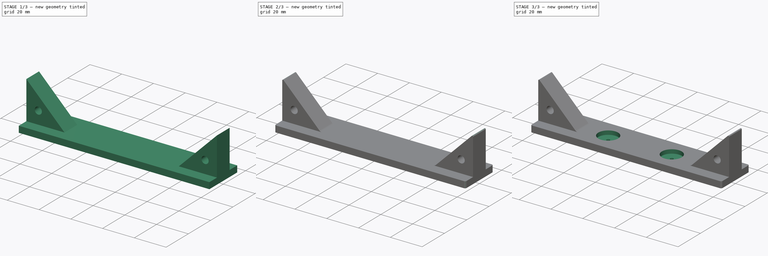
[diagram: build sequence overview — one tinted view per stage of 3, left to right]
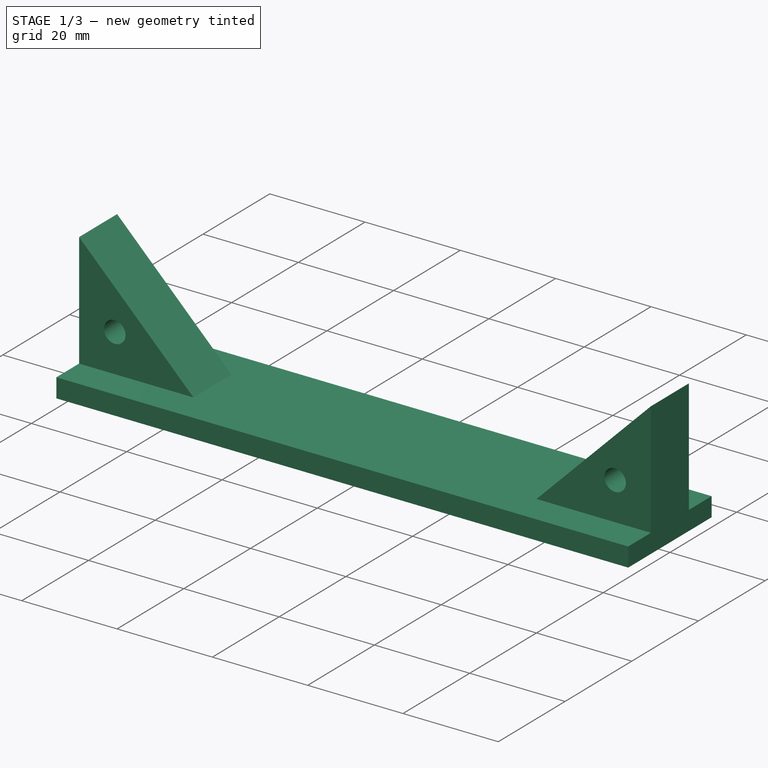
[diagram: stage 1 of 3 — iso view after this stage's code; geometry added in this stage tinted green]
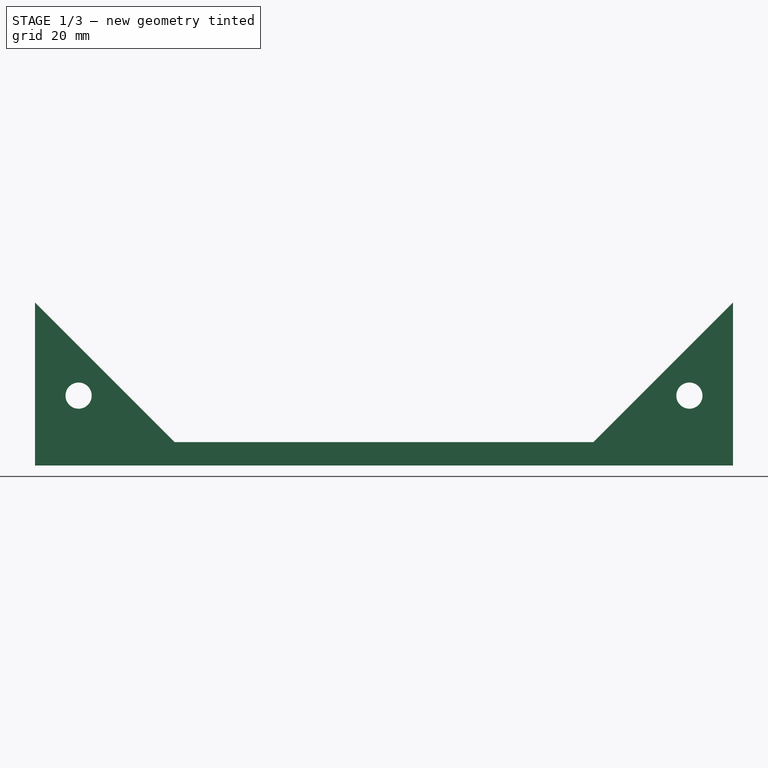
[diagram: stage 1 of 3 — front view after this stage's code; geometry added in this stage tinted green]
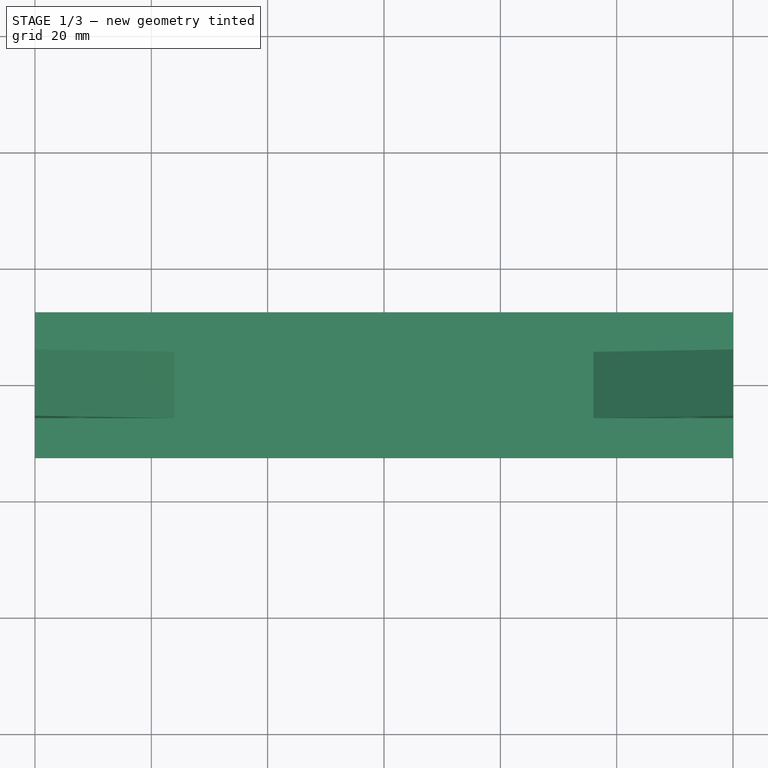
[diagram: stage 1 of 3 — top view after this stage's code; geometry added in this stage tinted green]
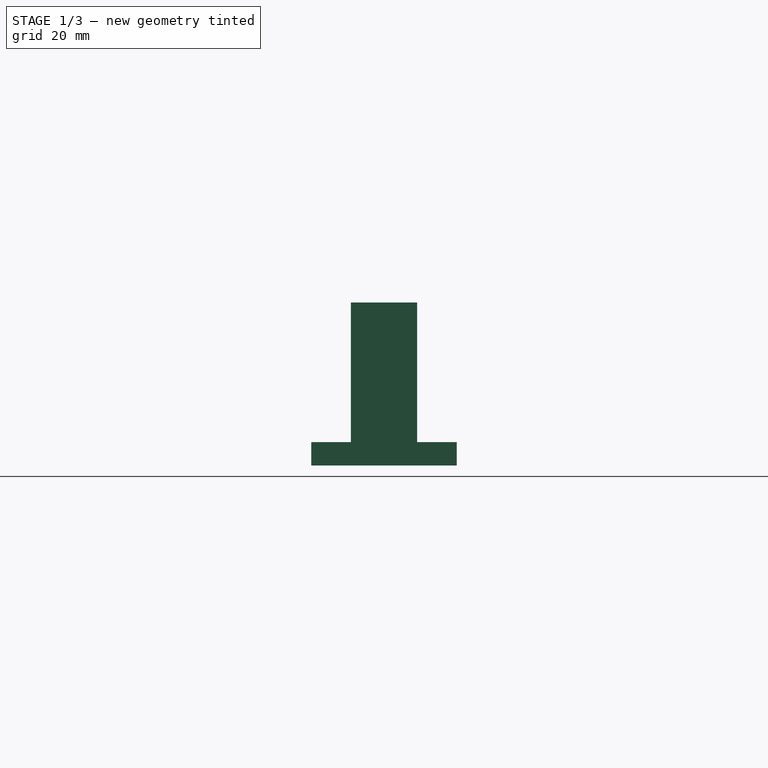
[diagram: stage 1 of 3 — right view after this stage's code; geometry added in this stage tinted green]
FCSTD DOCUMENT  (FreeCAD 0.19R24291 (Git))
Label: 120mmFanHolder
License: All rights reserved
LicenseURL: http://en.wikipedia.org/wiki/All_rights_reserved
objects: Sketcher::SketchObject×4, PartDesign::Fillet×3, PartDesign::Pad×2, PartDesign::Pocket×2, PartDesign::Body×1
note: 19 computed .brp shape members not serialized (recipe doc carries the construction recipe); baked Part::Feature solids carry a one-line shape summary decoded from their .brp

FEATURE [Sketcher::SketchObject] Sketch
  FullyConstrained = true
  MapMode = 5
  Support = -> [XY_Plane]
  expr: Constraints[10] = Constraints[8] / 2
  expr: Constraints[11] = Constraints[9] / 2
  sketch-geometry (4):
    g0: LineSegment StartX=-60 StartY=-12.5 StartZ=0 EndX=60 EndY=-12.5 EndZ=0
    g1: LineSegment StartX=60 StartY=-12.5 StartZ=0 EndX=60 EndY=12.5 EndZ=0
    g2: LineSegment StartX=60 StartY=12.5 StartZ=0 EndX=-60 EndY=12.5 EndZ=0
    g3: LineSegment StartX=-60 StartY=12.5 StartZ=0 EndX=-60 EndY=-12.5 EndZ=0
  constraints (12):
    c: Coincident(g0,g1)
    c: Coincident(g1,g2)
    c: Coincident(g2,g3)
    c: Coincident(g3,g0)
    c: Horizontal(g0)
    c: Horizontal(g2)
    c: Vertical(g1)
    c: Vertical(g3)
    c: Distance(g2) = 120
    c: Distance(g1) = 25
    c: Distance(g2,g-2) = 60
    c: Distance(g1,g-1) = 12.5
FEATURE [PartDesign::Pad] Pad
  Direction = (1,1,1)
  Length = 4
  Length2 = 100
  Profile = -> Sketch
  Type = 0
FEATURE [Sketcher::SketchObject] Sketch001
  ExternalGeometry = -> [Pad]
  FullyConstrained = true
  MapMode = 5
  Placement = pos=(0,0,0) rot=(1,0,0;1.5708rad)
  Support = -> [XZ_Plane]
  expr: Constraints[15] = Constraints[6]
  expr: Constraints[20] = Constraints[19]
  sketch-geometry (10):
    g0: LineSegment StartX=-60 StartY=4 StartZ=0 EndX=-60 EndY=28 EndZ=0
    g1: LineSegment StartX=-60 StartY=28 StartZ=0 EndX=-36 EndY=4 EndZ=0
    g2: LineSegment StartX=-36 StartY=4 StartZ=0 EndX=-60 EndY=4 EndZ=0
    g3: LineSegment StartX=60 StartY=4 StartZ=0 EndX=36 EndY=4 EndZ=0
    g4: LineSegment StartX=36 StartY=4 StartZ=0 EndX=60 EndY=28 EndZ=0
    g5: LineSegment StartX=60 StartY=28 StartZ=0 EndX=60 EndY=4 EndZ=0
    g6: Circle CenterX=-52.5 CenterY=12 CenterZ=0 NormalX=0 NormalY=0 NormalZ=1 AngleXU=0 Radius=2.25
    g7: Circle CenterX=52.5 CenterY=12 CenterZ=0 NormalX=0 NormalY=0 NormalZ=1 AngleXU=0 Radius=2.25
    g8: LineSegment StartX=-52.5 StartY=12 StartZ=0 EndX=-60 EndY=12 EndZ=0
    g9: LineSegment StartX=52.5 StartY=12 StartZ=0 EndX=60 EndY=12 EndZ=0
  constraints (28):
    c: Vertical(g0)
    c: Coincident(g1,g0)
    c: PointOnObject(g1,g-3)
    c: Coincident(g2,g1)
    c: Coincident(g2,g0)
    c: Angle(g0,g1) = 0.785398
    c: Distance(g0) = 24
    c: Coincident(g0,g-4)
    c: Coincident(g3,g-3)
    c: PointOnObject(g3,g-3)
    c: Coincident(g4,g3)
    c: Coincident(g5,g4)
    c: Coincident(g5,g3)
    c: Equal(g5,g3)
    c: Vertical(g5)
    c: Distance(g5) = 24
    c: Horizontal(g6,g7)
    c: Distance(g6,g7) = 105
    c: Distance(g6,g2) = 8
    c: Diameter(g6) = 4.5
    c: Diameter(g7) = 4.5
    c: Coincident(g8,g6)
    c: PointOnObject(g8,g0)
    c: Horizontal(g8)
    c: Coincident(g9,g7)
    c: Horizontal(g9)
    c: PointOnObject(g9,g5)
    c: Equal(g9,g8)
FEATURE [PartDesign::Pad] Pad001
  BaseFeature = -> Pad
  Direction = (1,1,1)
  Length = 11.4
  Length2 = 100
  Midplane = true
  Profile = -> Sketch001
  Type = 0
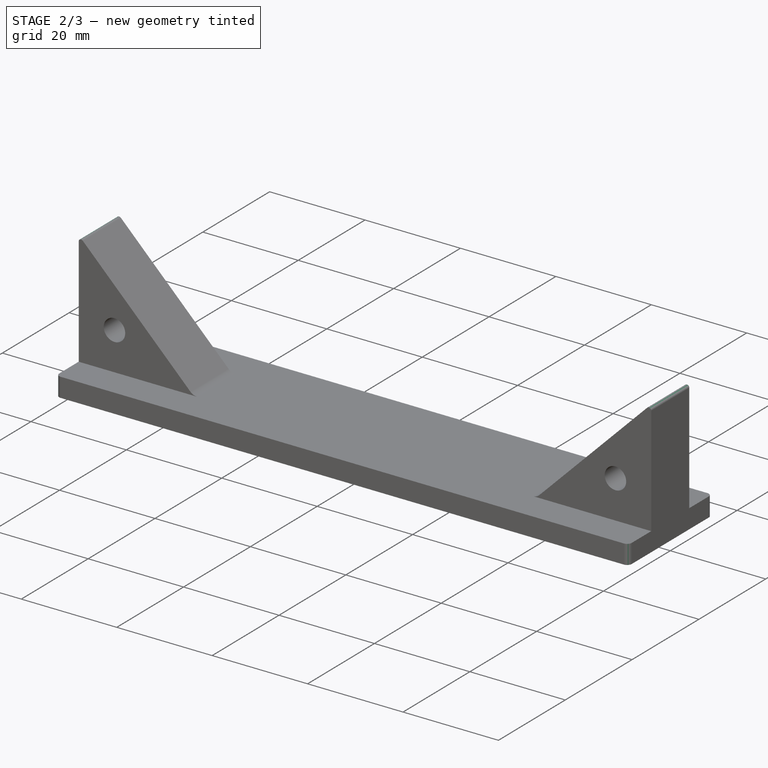
[diagram: stage 2 of 3 — iso view after this stage's code; geometry added in this stage tinted green]
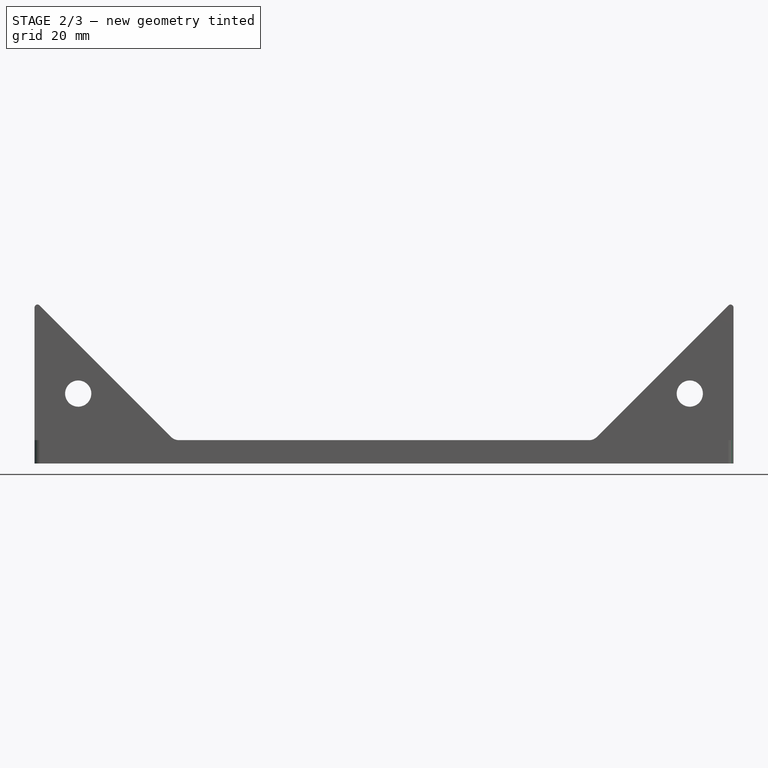
[diagram: stage 2 of 3 — front view after this stage's code; geometry added in this stage tinted green]
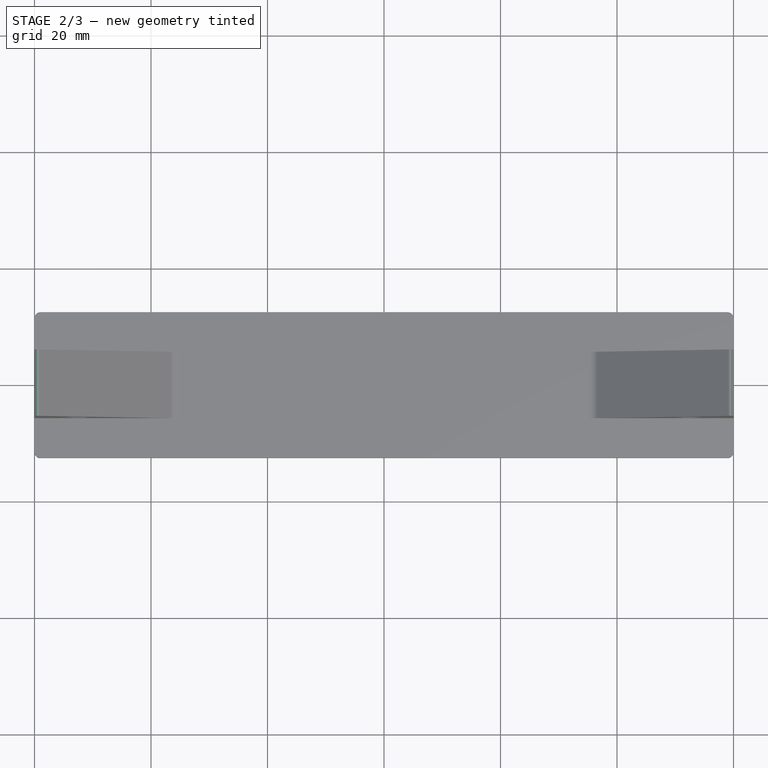
[diagram: stage 2 of 3 — top view after this stage's code; geometry added in this stage tinted green]
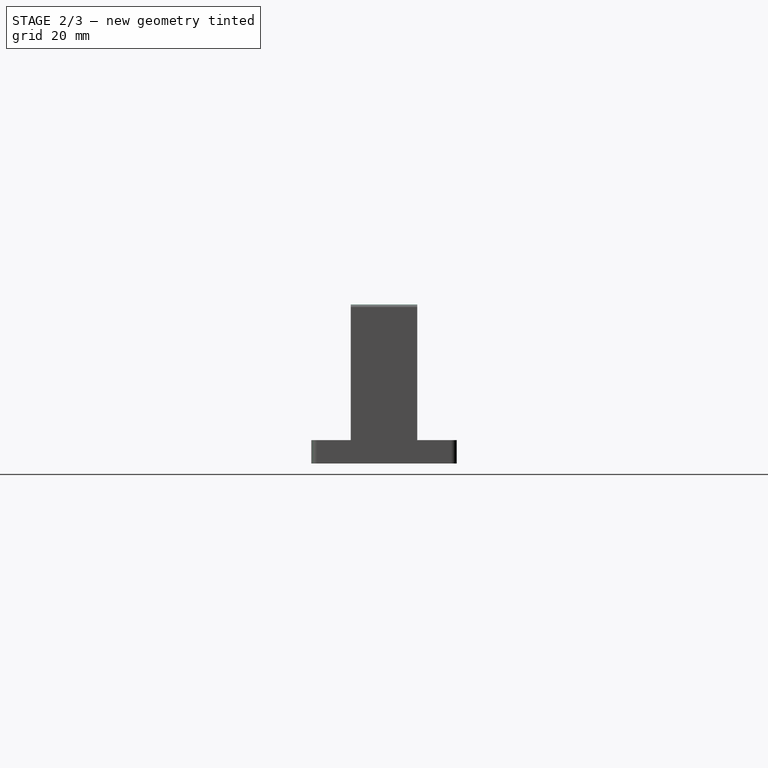
[diagram: stage 2 of 3 — right view after this stage's code; geometry added in this stage tinted green]
FEATURE [PartDesign::Fillet] Fillet
  Base = -> Pad001 [Edge17,Edge21]
  BaseFeature = -> Pad001
  Radius = 2
  SupportTransform = false
FEATURE [PartDesign::Fillet] Fillet001
  Base = -> Fillet [Edge45,Edge47]
  BaseFeature = -> Fillet
  Radius = 0.5
  SupportTransform = false
FEATURE [PartDesign::Fillet] Fillet002
  Base = -> Fillet001 [Edge32,Edge33,Edge37,Edge35]
  BaseFeature = -> Fillet001
  Radius = 1
  SupportTransform = false
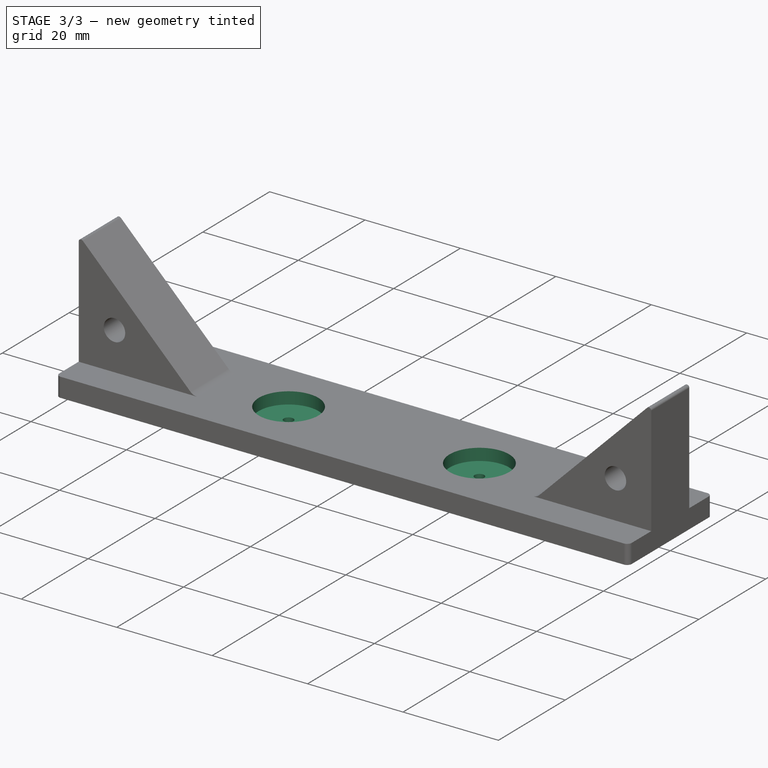
[diagram: stage 3 of 3 — iso view after this stage's code; geometry added in this stage tinted green]
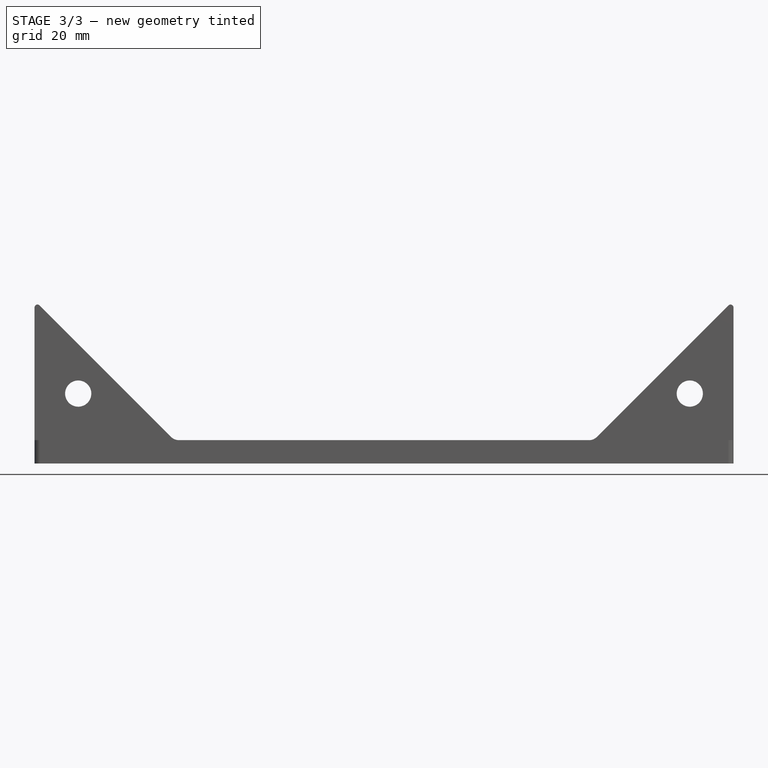
[diagram: stage 3 of 3 — front view after this stage's code; geometry added in this stage tinted green]
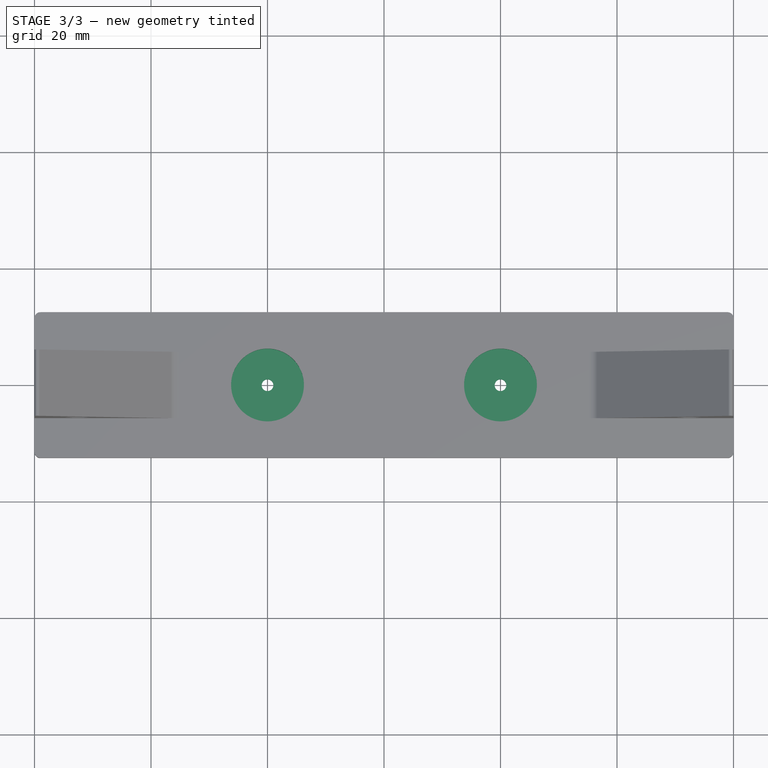
[diagram: stage 3 of 3 — top view after this stage's code; geometry added in this stage tinted green]
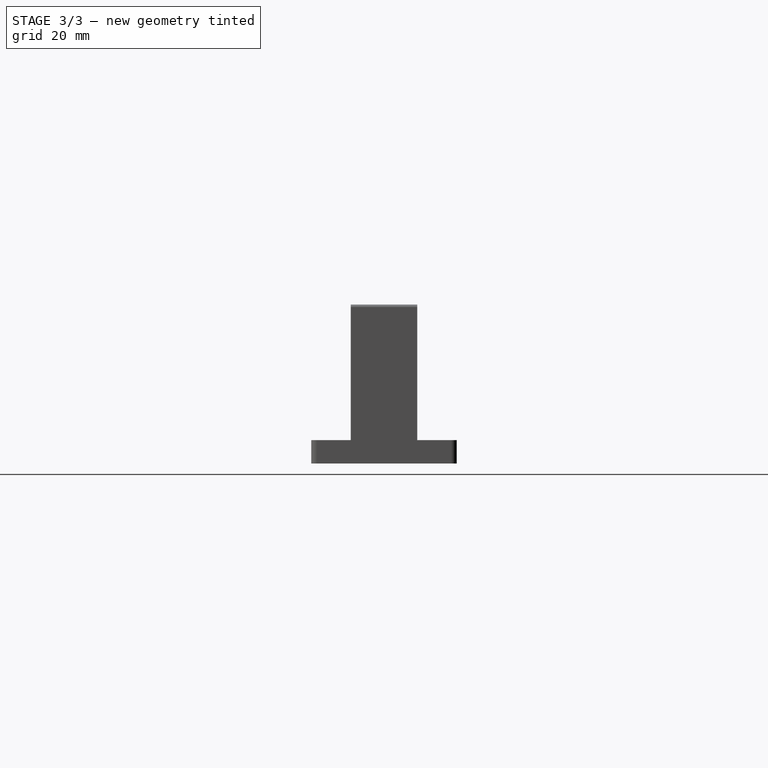
[diagram: stage 3 of 3 — right view after this stage's code; geometry added in this stage tinted green]
FEATURE [Sketcher::SketchObject] Sketch002
  FullyConstrained = true
  MapMode = 5
  Placement = pos=(0,0,4) rot=(0,0,1;0rad)
  Support = -> [Fillet002]
  expr: Constraints[3] = Constraints[2]
  sketch-geometry (4):
    g0: Circle CenterX=-20 CenterY=0 CenterZ=0 NormalX=0 NormalY=0 NormalZ=1 AngleXU=0 Radius=6.25
    g1: Circle CenterX=20 CenterY=0 CenterZ=0 NormalX=0 NormalY=0 NormalZ=1 AngleXU=0 Radius=6.25
    g2: LineSegment StartX=-20 StartY=0 StartZ=0 EndX=0 EndY=0 EndZ=0
    g3: LineSegment StartX=20 StartY=0 StartZ=0 EndX=0 EndY=0 EndZ=0
  constraints (10):
    c: PointOnObject(g0,g-1)
    c: PointOnObject(g1,g-1)
    c: Diameter(g0) = 12.5
    c: Diameter(g1) = 12.5
    c: Coincident(g2,g0)
    c: Coincident(g2,g-1)
    c: Coincident(g3,g1)
    c: Coincident(g3,g-1)
    c: Equal(g3,g2)
    c: Distance(g2) = 20
FEATURE [PartDesign::Pocket] Pocket
  BaseFeature = -> Fillet002
  Length = 2.5
  Length2 = 100
  Profile = -> Sketch002
  Type = 0
FEATURE [Sketcher::SketchObject] Sketch003
  ExternalGeometry = -> [Pocket]
  FullyConstrained = true
  MapMode = 5
  Placement = pos=(0,0,1.5) rot=(0,0,1;0rad)
  Support = -> [Pocket]
  expr: Constraints[3] = Constraints[2]
  sketch-geometry (2):
    g0: Circle CenterX=-20 CenterY=0 CenterZ=0 NormalX=0 NormalY=0 NormalZ=1 AngleXU=0 Radius=1
    g1: Circle CenterX=20 CenterY=0 CenterZ=0 NormalX=0 NormalY=0 NormalZ=1 AngleXU=0 Radius=1
  constraints (4):
    c: Coincident(g0,g-3)
    c: Coincident(g1,g-4)
    c: Diameter(g0) = 2
    c: Diameter(g1) = 2
FEATURE [PartDesign::Pocket] Pocket001
  BaseFeature = -> Pocket
  Length = 5
  Length2 = 100
  Profile = -> Sketch003
  Type = 1
FEATURE [PartDesign::Body] Body
  Group = -> [Sketch,Pad,Sketch001,Pad001,Fillet,Fillet001,Fillet002,Sketch002,Pocket,Sketch003,Pocket001]
  Origin = -> Origin
  Tip = -> Pocket001
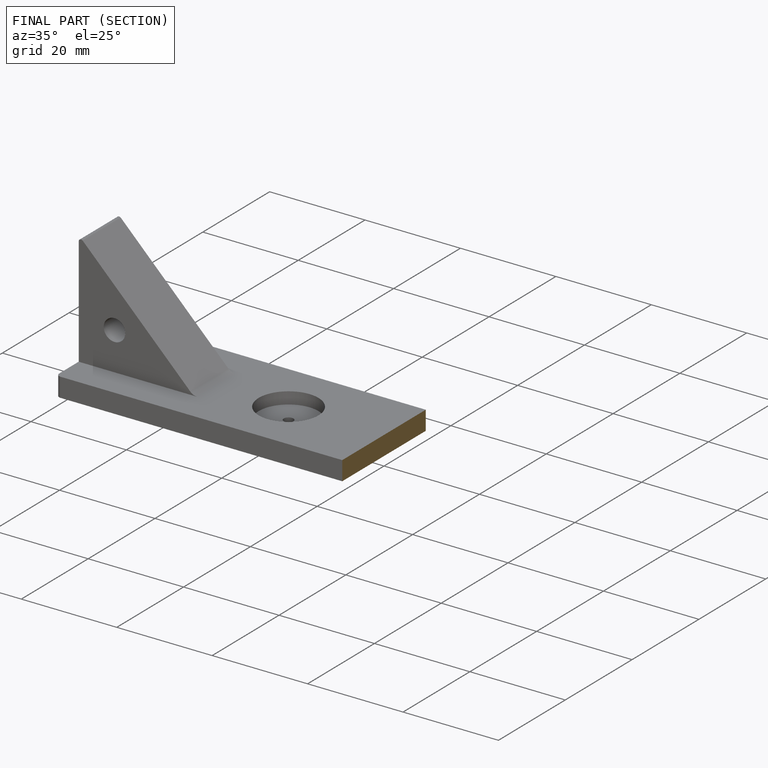
[diagram: finished part — half-section view (interior)]
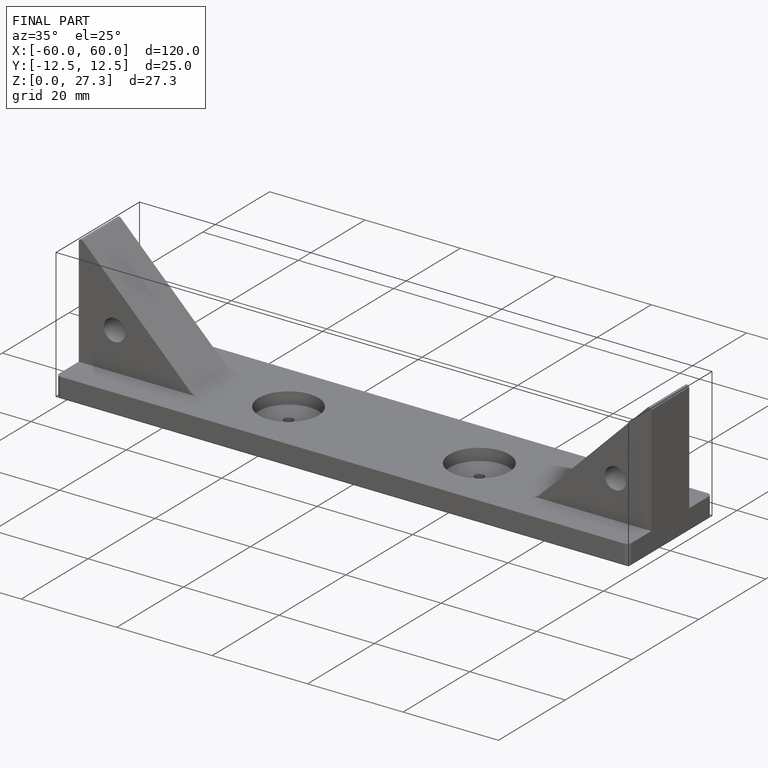
[diagram: finished part — iso view with bounding-box wireframe]
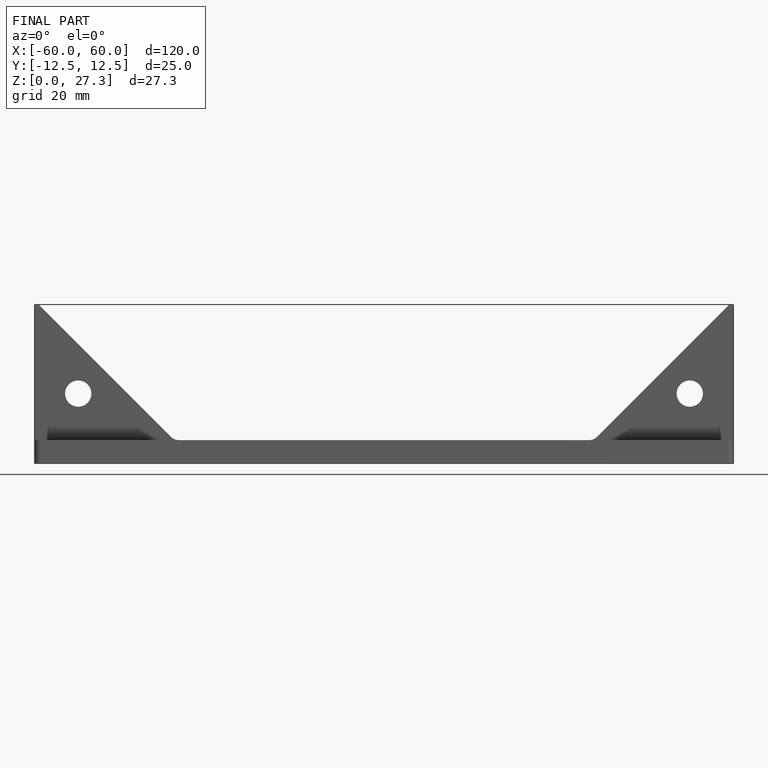
[diagram: finished part — front view with bounding-box wireframe]
